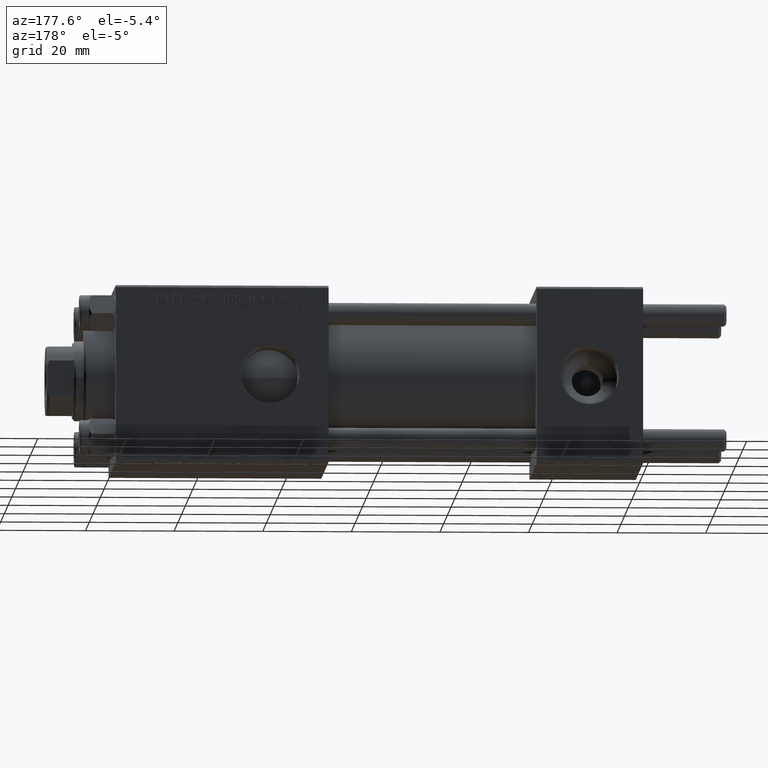
[diagram: clean part render]
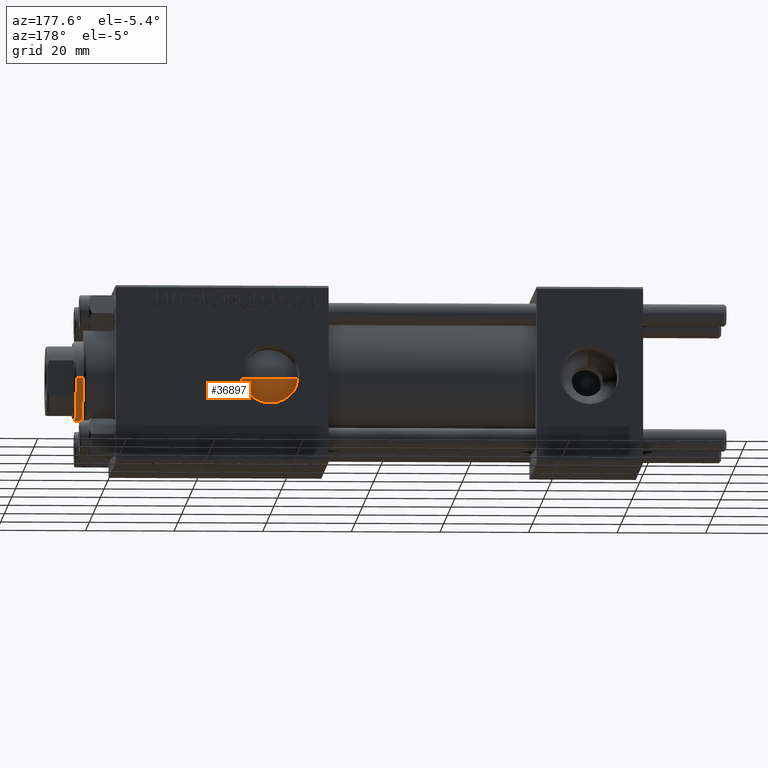
[diagram: same view with one face highlighted and labeled with its STEP entity id]
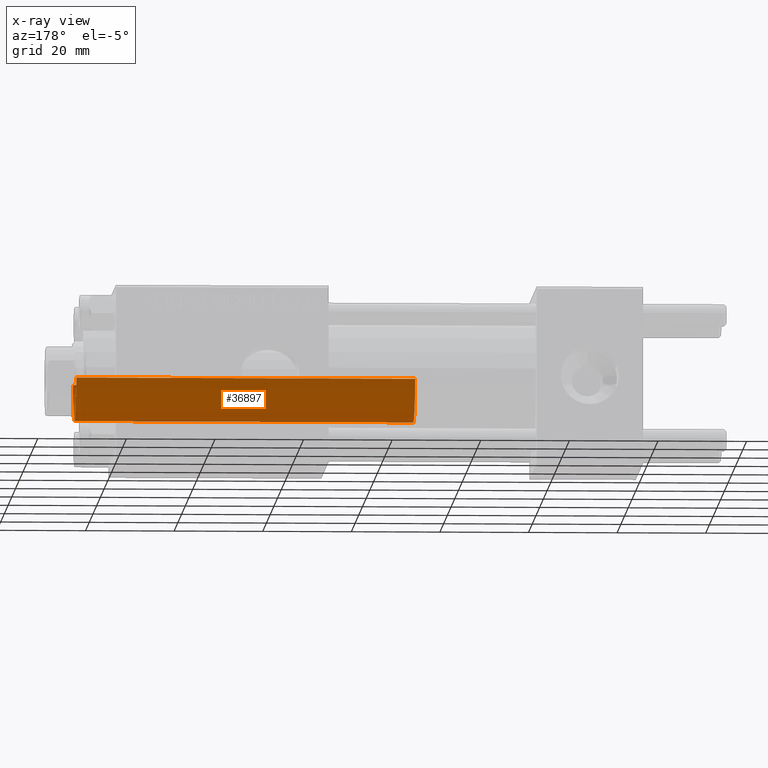
[diagram: x-ray of the same camera — body ghosted, the highlighted face saturated]
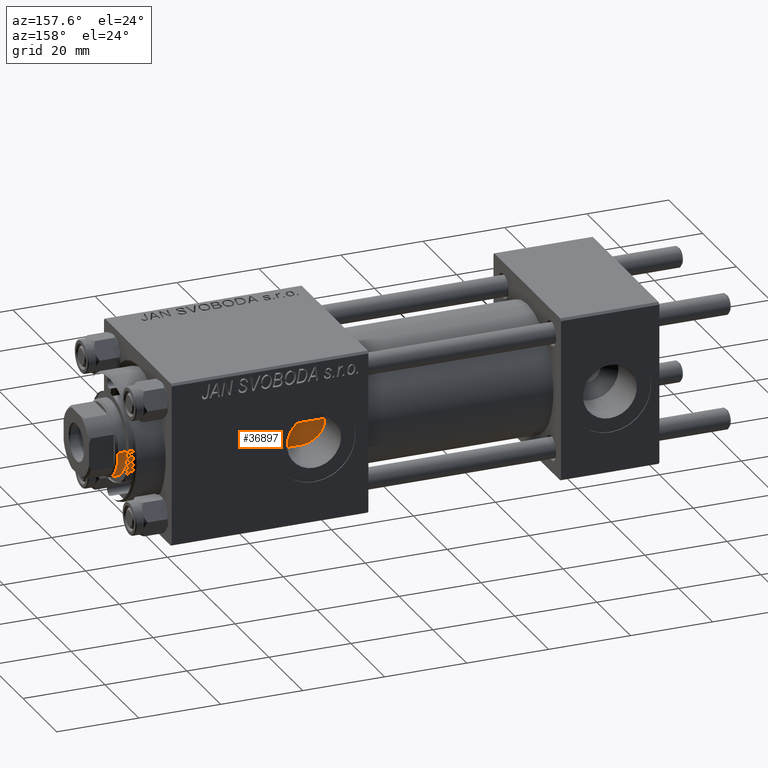
[diagram: same view with one face highlighted and labeled with its STEP entity id]
A machine part, auxiliary view. The second image highlights one B-rep face of the part: STEP entity #36897.
The next image is the same camera in x-ray: the body ghosted, the highlighted face saturated — about 3% of this face is hidden behind the body in this view.
A second angle (auxiliary view) of the same face is appended — the face is thin or edge-on in the first view.
In plain terms, the highlighted cylindrical surface (partial cylindrical patch) has radius 9 mm, axis along (-1, 0, 0).
Its self-contained STEP definition (entity closure, byte-faithful):
#357 = DIRECTION ( 'NONE',  ( 0.000000000000000000, 0.000000000000000000, -1.000000000000000000 ) ) ;
#2830 = CIRCLE ( 'NONE', #27955, 9.000000000000000000 ) ;
#5339 = DIRECTION ( 'NONE',  ( -0.000000000000000000, -0.000000000000000000, -1.000000000000000000 ) ) ;
#5594 = CARTESIAN_POINT ( 'NONE',  ( 9.000000000000000000, 1.102182119232617714E-15, 104.0000000000000000 ) ) ;
#7086 = AXIS2_PLACEMENT_3D ( 'NONE', #41314, #49475, #45510 ) ;
#9161 = ORIENTED_EDGE ( 'NONE', *, *, #32636, .T. ) ;
#9579 = CARTESIAN_POINT ( 'NONE',  ( -9.000000000000000000, 0.000000000000000000, 104.0000000000000000 ) ) ;
#15675 = CARTESIAN_POINT ( 'NONE',  ( 0.000000000000000000, 0.000000000000000000, 27.00000000000000000 ) ) ;
#15938 = DIRECTION ( 'NONE',  ( 1.000000000000000000, 0.000000000000000000, 0.000000000000000000 ) ) ;
#18648 = EDGE_CURVE ( 'NONE', #21971, #37106, #2830, .T. ) ;
#19517 = VERTEX_POINT ( 'NONE', #40490 ) ;
#20369 = CIRCLE ( 'NONE', #28740, 9.000000000000000000 ) ;
#21303 = ORIENTED_EDGE ( 'NONE', *, *, #47503, .F. ) ;
#21643 = DIRECTION ( 'NONE',  ( -0.000000000000000000, -0.000000000000000000, -1.000000000000000000 ) ) ;
#21971 = VERTEX_POINT ( 'NONE', #37718 ) ;
#24989 = CARTESIAN_POINT ( 'NONE',  ( 0.000000000000000000, 0.000000000000000000, 103.5000000000000000 ) ) ;
#25315 = FACE_OUTER_BOUND ( 'NONE', #40099, .T. ) ;
#27074 = VECTOR ( 'NONE', #5339, 1000.000000000000000 ) ;
#27955 = AXIS2_PLACEMENT_3D ( 'NONE', #15675, #47169, #15938 ) ;
#28740 = AXIS2_PLACEMENT_3D ( 'NONE', #24989, #357, #48885 ) ;
#29473 = CARTESIAN_POINT ( 'NONE',  ( -9.000000000000000000, 0.000000000000000000, 103.5000000000000000 ) ) ;
#29501 = CYLINDRICAL_SURFACE ( 'NONE', #7086, 9.000000000000000000 ) ;
#30781 = VECTOR ( 'NONE', #21643, 1000.000000000000000 ) ;
#30906 = VERTEX_POINT ( 'NONE', #29473 ) ;
#31070 = CARTESIAN_POINT ( 'NONE',  ( -9.000000000000000000, 0.000000000000000000, 27.00000000000000000 ) ) ;
#32636 = EDGE_CURVE ( 'NONE', #30906, #19517, #20369, .T. ) ;
#32784 = ORIENTED_EDGE ( 'NONE', *, *, #34407, .T. ) ;
#34407 = EDGE_CURVE ( 'NONE', #19517, #21971, #41782, .T. ) ;
#36897 = ADVANCED_FACE ( 'NONE', ( #25315 ), #29501, .T. ) ;
#37106 = VERTEX_POINT ( 'NONE', #31070 ) ;
#37718 = CARTESIAN_POINT ( 'NONE',  ( 9.000000000000000000, 1.102182119232617714E-15, 27.00000000000000000 ) ) ;
#40099 = EDGE_LOOP ( 'NONE', ( #9161, #32784, #49248, #21303 ) ) ;
#40490 = CARTESIAN_POINT ( 'NONE',  ( 9.000000000000000000, 1.102182119232617714E-15, 103.5000000000000000 ) ) ;
#41314 = CARTESIAN_POINT ( 'NONE',  ( 0.000000000000000000, 0.000000000000000000, 104.0000000000000000 ) ) ;
#41782 = LINE ( 'NONE', #5594, #27074 ) ;
#45510 = DIRECTION ( 'NONE',  ( -1.000000000000000000, 0.000000000000000000, 0.000000000000000000 ) ) ;
#45511 = LINE ( 'NONE', #9579, #30781 ) ;
#47169 = DIRECTION ( 'NONE',  ( 0.000000000000000000, 0.000000000000000000, 1.000000000000000000 ) ) ;
#47503 = EDGE_CURVE ( 'NONE', #30906, #37106, #45511, .T. ) ;
#48885 = DIRECTION ( 'NONE',  ( 1.000000000000000000, 0.000000000000000000, 0.000000000000000000 ) ) ;
#49248 = ORIENTED_EDGE ( 'NONE', *, *, #18648, .T. ) ;
#49475 = DIRECTION ( 'NONE',  ( -0.000000000000000000, -0.000000000000000000, -1.000000000000000000 ) ) ;